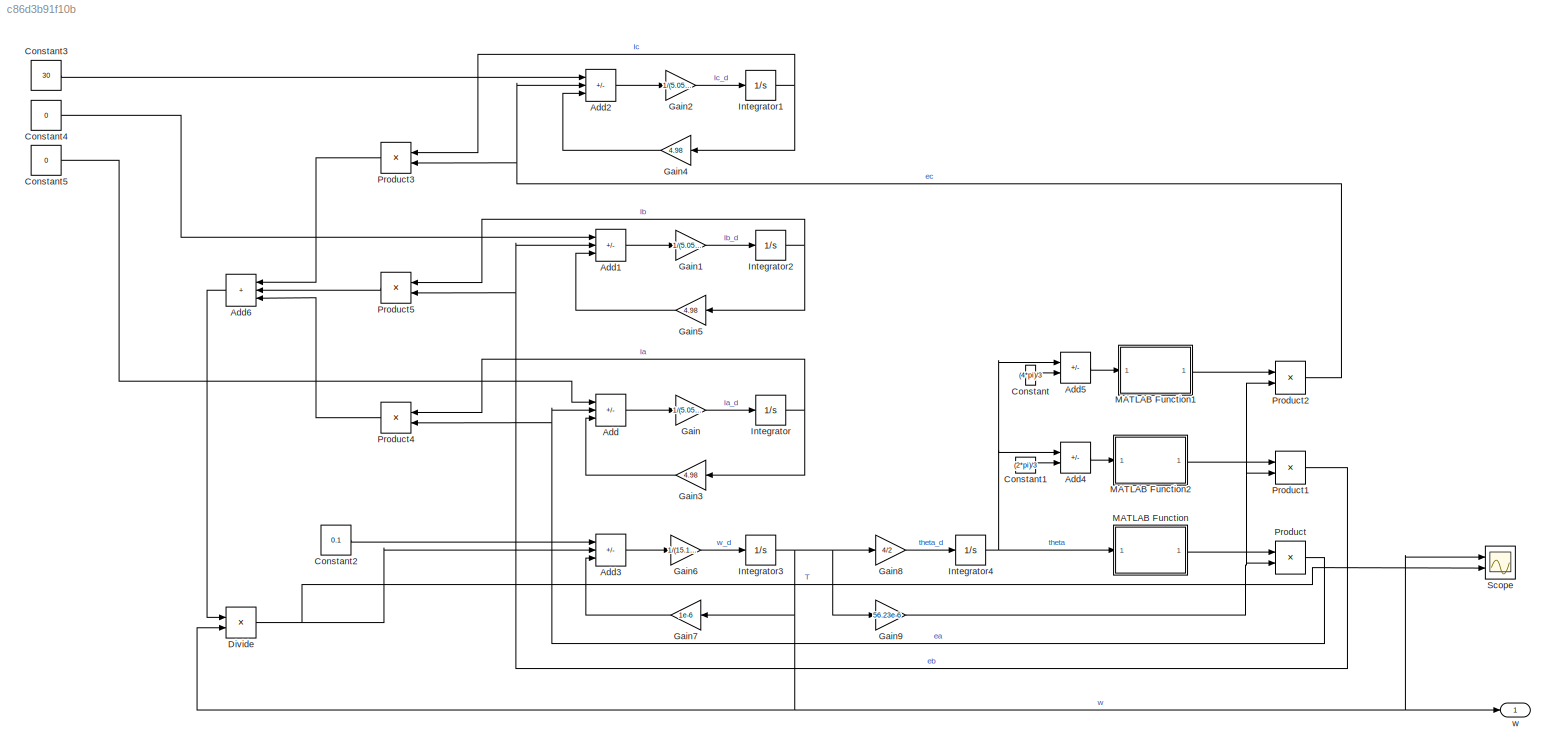
MODEL slx_c86d3b91f10b
KIND model
CONFIG AbsTol = auto
CONFIG EnableMultiTasking = off
CONFIG FixedStep = auto
CONFIG MaxStep = auto
CONFIG MinStep = auto
CONFIG RelTol = 1e-3
CONFIG SampleTimeConstraint = Unconstrained
CONFIG SolverName = VariableStepAuto
CONFIG StartTime = 0.0
CONFIG StopTime = 10.0
BLOCK [Sum] Add
  IconShape = rectangular
  Inputs = +--
  Ports = [3, 1]
BLOCK [Sum] Add1
  IconShape = rectangular
  Inputs = +--
  Ports = [3, 1]
BLOCK [Sum] Add2
  IconShape = rectangular
  Inputs = +--
  Ports = [3, 1]
BLOCK [Sum] Add3
  IconShape = rectangular
  Inputs = -+-
  Ports = [3, 1]
BLOCK [Sum] Add4
  IconShape = rectangular
  Inputs = +-
  Ports = [2, 1]
BLOCK [Sum] Add5
  IconShape = rectangular
  Inputs = +-
  Ports = [2, 1]
BLOCK [Sum] Add6
  IconShape = rectangular
  Inputs = +++
  NameLocation = top
  Ports = [3, 1]
BLOCK [Constant] Constant
  Value = (4*pi)/3
BLOCK [Constant] Constant1
  Value = (2*pi)/3
BLOCK [Constant] Constant2
  Value = 0.1
BLOCK [Constant] Constant3
  Value = 30
BLOCK [Constant] Constant4
  Value = 0
BLOCK [Constant] Constant5
  Value = 0
BLOCK [Product] Divide
  Inputs = */
  Ports = [2, 1]
BLOCK [Gain] Gain
  Gain = 1/(5.05e-3)
BLOCK [Gain] Gain1
  Gain = 1/(5.05e-3)
BLOCK [Gain] Gain2
  Gain = 1/(5.05e-3)
BLOCK [Gain] Gain3
  Gain = 4.98
  NameLocation = top
BLOCK [Gain] Gain4
  Gain = 4.98
  NameLocation = top
BLOCK [Gain] Gain5
  Gain = 4.98
  NameLocation = top
BLOCK [Gain] Gain6
  Gain = 1/(15.17e-6)
BLOCK [Gain] Gain7
  Gain = 1e-6
  NameLocation = top
BLOCK [Gain] Gain8
  Gain = 4/2
BLOCK [Gain] Gain9
  Gain = 56.23e-6
BLOCK [Integrator] Integrator
  Ports = [1, 1]
BLOCK [Integrator] Integrator1
  Ports = [1, 1]
BLOCK [Integrator] Integrator2
  Ports = [1, 1]
BLOCK [Integrator] Integrator3
  InitialCondition = 1
  Ports = [1, 1]
BLOCK [Integrator] Integrator4
  Ports = [1, 1]
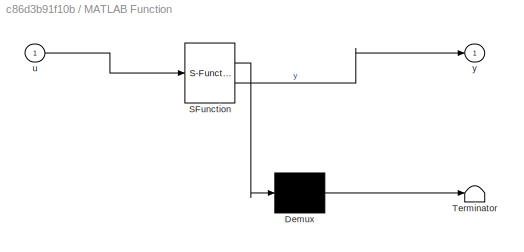
BLOCK [SubSystem] MATLAB Function
  ErrorFcn = Stateflow.Translate.translate
  PermitHierarchicalResolution = ExplicitOnly
  Ports = [1, 1]
  RequestExecContextInheritance = off
  SFBlockType = MATLAB Function
  TreatAsAtomicUnit = on
BLOCK [Demux] MATLAB Function/ Demux 
  Outputs = 1
  Ports = [1, 1]
BLOCK [S-Function] MATLAB Function/ SFunction 
  EnableBusSupport = on
  FunctionName = sf_sfun
  PortCounts = [1 2]
  Ports = [1, 2]
  SFcnIsStateOwnerBlock = off
  SFunctionDeploymentMode = off
  Tag = Stateflow S-Function 2
BLOCK [Terminator] MATLAB Function/ Terminator 
BLOCK [Inport] MATLAB Function/u
BLOCK [Outport] MATLAB Function/y
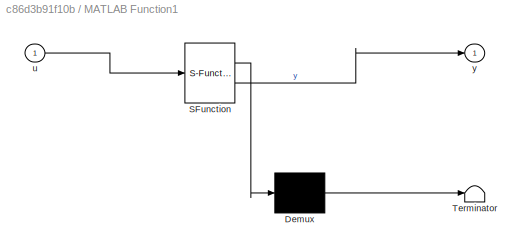
BLOCK [SubSystem] MATLAB Function1
  ErrorFcn = Stateflow.Translate.translate
  PermitHierarchicalResolution = ExplicitOnly
  Ports = [1, 1]
  RequestExecContextInheritance = off
  SFBlockType = MATLAB Function
  TreatAsAtomicUnit = on
BLOCK [Demux] MATLAB Function1/ Demux 
  Outputs = 1
  Ports = [1, 1]
BLOCK [S-Function] MATLAB Function1/ SFunction 
  EnableBusSupport = on
  FunctionName = sf_sfun
  PortCounts = [1 2]
  Ports = [1, 2]
  SFcnIsStateOwnerBlock = off
  SFunctionDeploymentMode = off
  Tag = Stateflow S-Function 1
BLOCK [Terminator] MATLAB Function1/ Terminator 
BLOCK [Inport] MATLAB Function1/u
BLOCK [Outport] MATLAB Function1/y
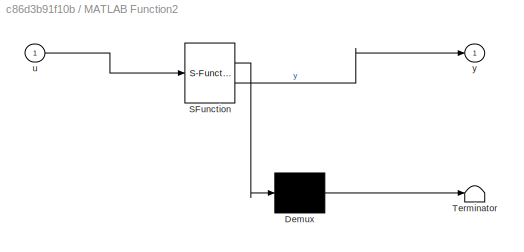
BLOCK [SubSystem] MATLAB Function2
  ErrorFcn = Stateflow.Translate.translate
  PermitHierarchicalResolution = ExplicitOnly
  Ports = [1, 1]
  RequestExecContextInheritance = off
  SFBlockType = MATLAB Function
  TreatAsAtomicUnit = on
BLOCK [Demux] MATLAB Function2/ Demux 
  Outputs = 1
  Ports = [1, 1]
BLOCK [S-Function] MATLAB Function2/ SFunction 
  EnableBusSupport = on
  FunctionName = sf_sfun
  PortCounts = [1 2]
  Ports = [1, 2]
  SFcnIsStateOwnerBlock = off
  SFunctionDeploymentMode = off
  Tag = Stateflow S-Function 3
BLOCK [Terminator] MATLAB Function2/ Terminator 
BLOCK [Inport] MATLAB Function2/u
BLOCK [Outport] MATLAB Function2/y
BLOCK [Product] Product
  Ports = [2, 1]
BLOCK [Product] Product1
  Ports = [2, 1]
BLOCK [Product] Product2
  Ports = [2, 1]
BLOCK [Product] Product3
  NameLocation = top
  Ports = [2, 1]
BLOCK [Product] Product4
  NameLocation = top
  Ports = [2, 1]
BLOCK [Product] Product5
  NameLocation = top
  Ports = [2, 1]
BLOCK [Scope] Scope
  Floating = off
  NumInputPorts = 2
  Ports = [2]
  ScopeSpecificationString = Simulink.scopes.TimeScopeBlockCfg('CurrentConfiguration', extmgr.ConfigurationSet(extmgr.Configuration('Core','General UI',true),extmgr.Configuration('Core','Source UI',true),extmgr.Configuration('Sources','WiredSimulink',true),extmgr.Configuration('Visuals','Time Domain',true,'SerializedDisplays',{struct('MinYLimReal','-1137.1429','MaxYLimReal','127.46032','YLabelReal','','MinYLimMag','  0.00000'...<+2027ch>
BLOCK [Outport] w
LINE Add1:1 -> Gain1:1
LINE Add2:1 -> Gain2:1
LINE Add3:1 -> Gain6:1
LINE Add4:1 -> MATLAB Function2:1
LINE Add5:1 -> MATLAB Function1:1
LINE Add6:1 -> Divide:1
LINE Add:1 -> Gain:1
LINE Constant1:1 -> Add4:2
LINE Constant2:1 -> Add3:1
LINE Constant3:1 -> Add2:1
LINE Constant4:1 -> Add1:1
LINE Constant5:1 -> Add:1
LINE Constant:1 -> Add5:2
NET Divide:1 -> Add3:2, Scope:2
LINE Gain1:1 -> Integrator2:1
LINE Gain2:1 -> Integrator1:1
LINE Gain3:1 -> Add:3
LINE Gain4:1 -> Add2:3
LINE Gain5:1 -> Add1:3
LINE Gain6:1 -> Integrator3:1
LINE Gain7:1 -> Add3:3
LINE Gain8:1 -> Integrator4:1
NET Gain9:1 -> Product1:2, Product2:2, Product:2
LINE Gain:1 -> Integrator:1
NET Integrator1:1 -> Gain4:1, Product3:1
NET Integrator2:1 -> Gain5:1, Product5:1
NET Integrator3:1 -> Divide:2, Gain7:1, Gain8:1, Gain9:1, Scope:1, w:1
NET Integrator4:1 -> Add4:1, Add5:1, MATLAB Function:1
NET Integrator:1 -> Gain3:1, Product4:1
LINE MATLAB Function1:1 -> Product2:1
LINE MATLAB Function2:1 -> Product1:1
LINE MATLAB Function:1 -> Product:1
NET Product1:1 -> Add1:2, Product5:2
NET Product2:1 -> Add2:2, Product3:2
LINE Product3:1 -> Add6:1
LINE Product4:1 -> Add6:3
LINE Product5:1 -> Add6:2
NET Product:1 -> Add:2, Product4:2
note: NET lines group one-source signal fan-out (src -> all destinations, sorted); 1:1 wires keep LINE
CHART MATLAB Function states=1 transitions=1
  STATE_LABEL 'eML_blk_kernel()'
  STATE_LABEL 'SCRIPT:\nfunction y = fcn(u)\n\nif (u>=0 && u<((2*pi)/3))\n    y = 1;\nelseif(u>=((2*pi)/3) && u<pi)\n    y = 1-(6/pi*(u-((2*pi)/3)));\nelseif(u>=pi && u<((5*pi)/3))\n    y = -1;\nelse\n    y = -1+(6/pi*(u-((5*pi)/3)));\nend\nend\n\n'  <repeated x3 — deduplicated; at blocks: MATLAB Function, MATLAB Function2, MATLAB Function1>
CHART MATLAB Function2 states=1 transitions=1
  STATE_LABEL 'eML_blk_kernel()'
CHART MATLAB Function1 states=1 transitions=1
  STATE_LABEL 'eML_blk_kernel()'
CHART  states=0 transitions=0
CHART  states=0 transitions=0
CHART  states=0 transitions=0
